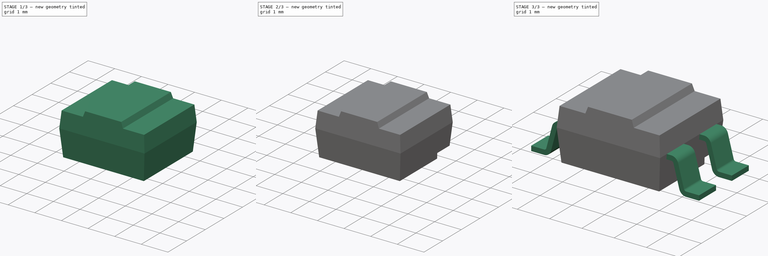
[diagram: build sequence overview — one tinted view per stage of 3, left to right]
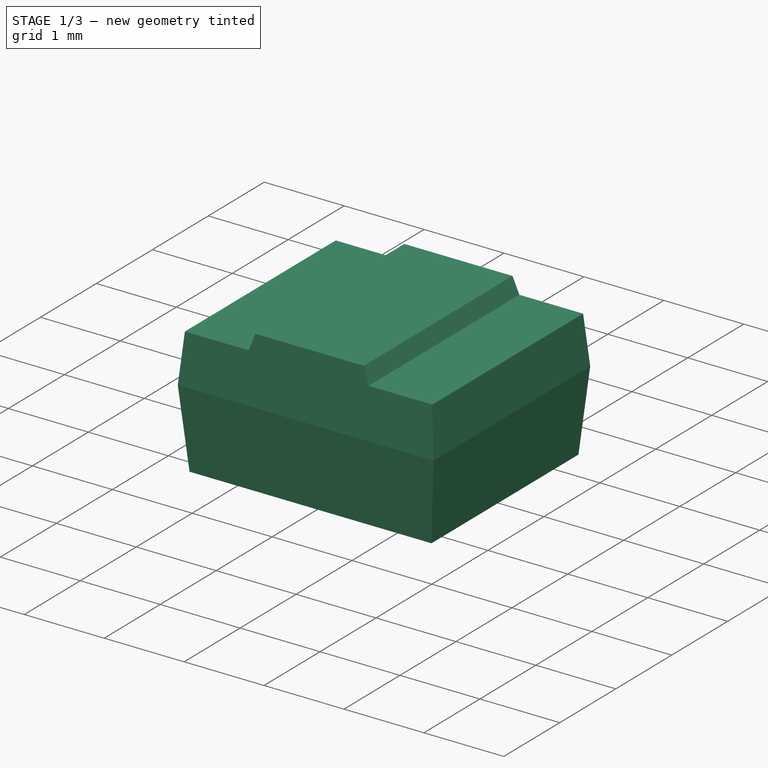
[diagram: stage 1 of 3 — iso view after this stage's code; geometry added in this stage tinted green]
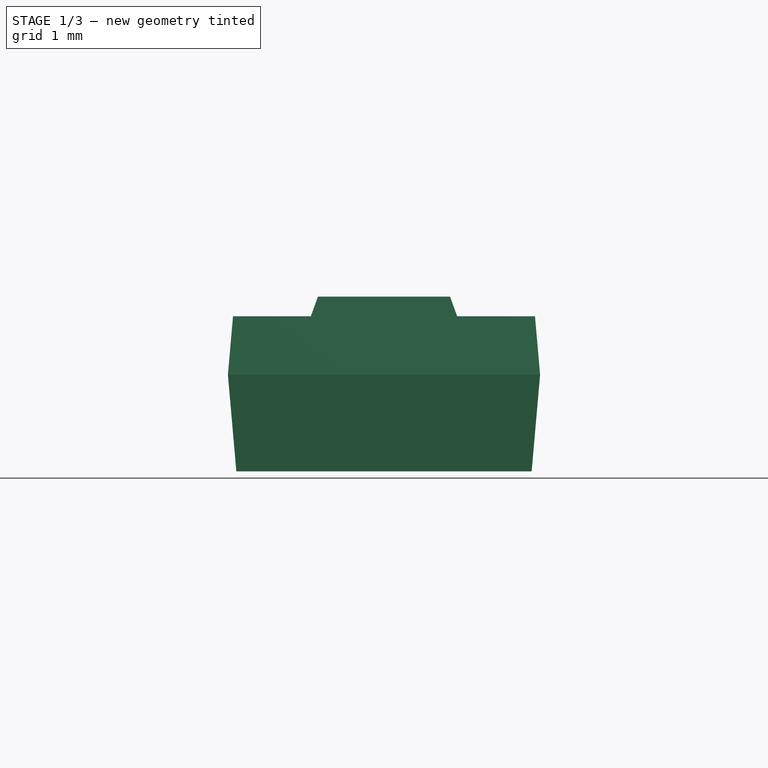
[diagram: stage 1 of 3 — front view after this stage's code; geometry added in this stage tinted green]
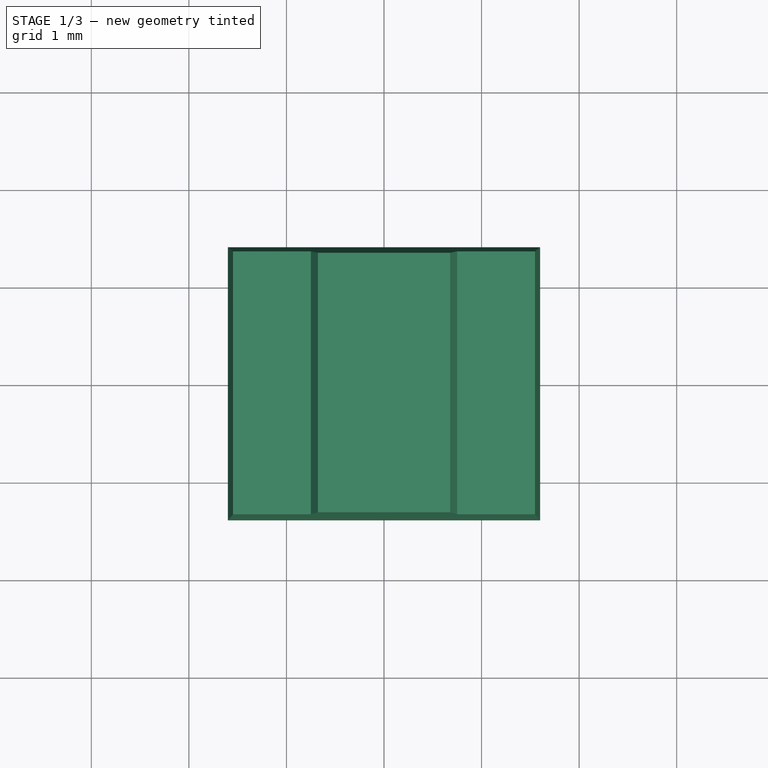
[diagram: stage 1 of 3 — top view after this stage's code; geometry added in this stage tinted green]
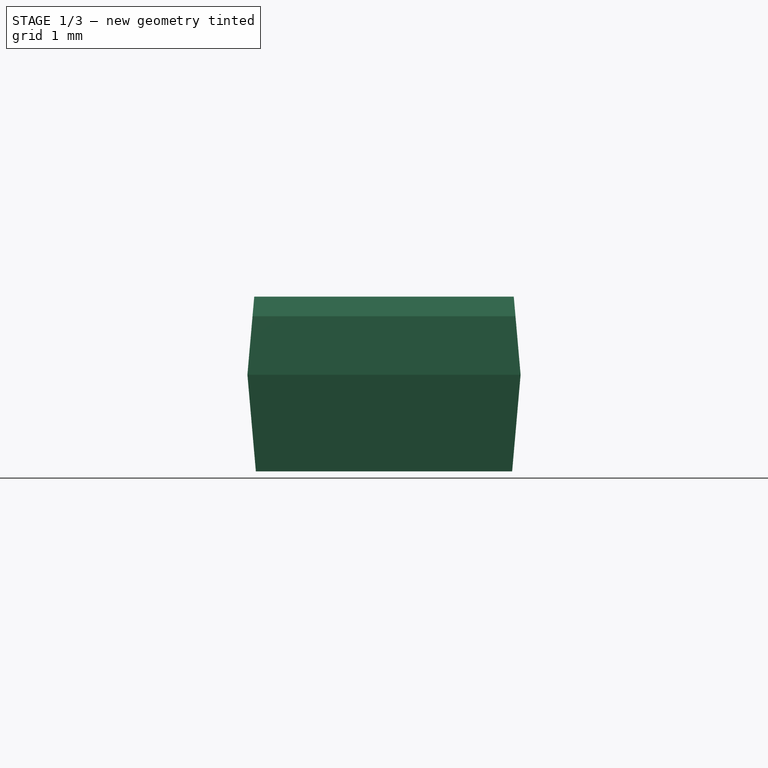
[diagram: stage 1 of 3 — right view after this stage's code; geometry added in this stage tinted green]
FCSTD DOCUMENT  (FreeCAD 2024.1006R14555 (Git shallow))
Label: LED_RGB-PLCC4_3.2x2.8mm_reverse_mount
License: All rights reserved
LicenseURL: https://en.wikipedia.org/wiki/All_rights_reserved
objects: Sketcher::SketchObject×5, PartDesign::Mirrored×3, PartDesign::Pad×2, PartDesign::Pocket×2, PartDesign::Groove×1, PartDesign::Plane×1, PartDesign::Body×1
note: 36 computed .brp shape members not serialized (recipe doc carries the construction recipe); baked Part::Feature solids carry a one-line shape summary decoded from their .brp

FEATURE [Sketcher::SketchObject] Sketch
  ArcFitTolerance = 1e-06
  AttachmentSupport = -> [XZ_Plane]
  ExternalBSplineMaxDegree = 5
  ExternalBSplineTolerance = 0.0001
  FullyConstrained = true
  InternalTolerance = 1e-06
  InvalidShape = false
  MakeInternals = false
  MapMode = 5
  Placement = pos=(0,0,0) rot=(1,0,0;1.5708rad)
  Support = -> [XZ_Plane]
  TreeRank = 11
  ValidateShape = false
  sketch-geometry (12):
    g0: LineSegment StartX=0 StartY=0.05 StartZ=0 EndX=-1.51339 EndY=0.05 EndZ=0
    g1: LineSegment StartX=-1.51339 StartY=0.05 StartZ=0 EndX=-1.6 EndY=1.04 EndZ=0
    g2: LineSegment StartX=-1.6 StartY=1.04 StartZ=0 EndX=-1.54751 EndY=1.64 EndZ=0
    g3: LineSegment StartX=-1.54751 StartY=1.64 StartZ=0 EndX=-0.75 EndY=1.64 EndZ=0
    g4: LineSegment StartX=-0.75 StartY=1.64 StartZ=0 EndX=-0.677206 EndY=1.84 EndZ=0
    g5: LineSegment StartX=-0.677206 StartY=1.84 StartZ=0 EndX=0 EndY=1.84 EndZ=0
    g6: LineSegment StartX=0 StartY=1.84 StartZ=0 EndX=0.677206 EndY=1.84 EndZ=0
    g7: LineSegment StartX=0.677206 StartY=1.84 StartZ=0 EndX=0.75 EndY=1.64 EndZ=0
    g8: LineSegment StartX=0.75 StartY=1.64 StartZ=0 EndX=1.54751 EndY=1.64 EndZ=0
    g9: LineSegment StartX=1.54751 StartY=1.64 StartZ=0 EndX=1.6 EndY=1.04 EndZ=0
    g10: LineSegment StartX=1.6 StartY=1.04 StartZ=0 EndX=1.51339 EndY=0.05 EndZ=0
    g11: LineSegment StartX=1.51339 StartY=0.05 StartZ=0 EndX=0 EndY=0.05 EndZ=0
  constraints (31):
    c: PointOnObject(g0,g-2)
    c: Horizontal(g0)
    c: Coincident(g0,g1)
    c: Coincident(g1,g2)
    c: Coincident(g2,g3)
    c: Horizontal(g3)
    c: Coincident(g3,g4)
    c: Coincident(g4,g5)
    c: Horizontal(g5)
    c: Coincident(g5,g6)
    c: Coincident(g6,g7)
    c: Coincident(g7,g8)
    c: Coincident(g8,g9)
    c: Coincident(g9,g10)
    c: Coincident(g10,g11)
    c: Coincident(g11,g0)
    c: Symmetric(g1,g9,g-2)
    c: Symmetric(g0,g10,g-2)
    c: DistanceX(g1,g9) = 3.2
    c: Symmetric(g8,g2,g-2)
    c: PointOnObject(g5,g-2)
    c: DistanceY(g-1,g0) = 0.05
    c: DistanceY(g-1,g5) = 1.84
    c: Symmetric(g4,g6,g5)
    c: DistanceY(g1,g4) = 0.8
    c: Angle(g2,g-2) = 0.0872665
    c: Angle(g-2,g1) = 0.0872665
    c: DistanceY(g3,g4) = 0.2
    c: Symmetric(g7,g3,g-2)
    c: Angle(g4,g-2) = 0.349066
    c: DistanceX(g3,g7) = 1.5
FEATURE [PartDesign::Pad] Pad
  AddSubType = 0
  AlongSketchNormal = false
  AutoTaperInnerAngle = true
  CheckUpToFaceLimits = true
  ClaimChildren = false
  Direction = (0,-1,2e-16)
  Fit = 0
  FitJoin = 0
  InnerFit = 0
  InnerFitJoin = 0
  InvalidShape = false
  Length = 2.8
  Length2 = 10
  Linearize = true
  Midplane = true
  NewSolid = false
  Profile = -> Sketch
  ReferenceAxis = -> Sketch [N_Axis]
  Suppress = false
  TaperInnerAngle = 0
  TaperInnerAngleRev = 0
  TreeRank = 12
  Type = 0
  ValidateShape = true
  _ProfileBasedVersion = 1
FEATURE [Sketcher::SketchObject] Sketch001
  ArcFitTolerance = 1e-06
  AttachmentSupport = -> [YZ_Plane]
  ExternalBSplineMaxDegree = 5
  ExternalBSplineTolerance = 0.0001
  ExternalGeometry = -> [Pad]
  FullyConstrained = true
  InternalTolerance = 1e-06
  InvalidShape = false
  MakeInternals = false
  MapMode = 5
  Placement = pos=(0,0,0) rot=(0.57735,0.57735,0.57735;2.0944rad)
  Support = -> [YZ_Plane]
  TreeRank = 13
  ValidateShape = false
  sketch-geometry (6):
    g0: LineSegment StartX=-1.4 StartY=1.04 StartZ=0 EndX=-1.33001 EndY=1.84 EndZ=0
    g1: LineSegment StartX=-1.4 StartY=1.84 StartZ=0 EndX=-1.4 EndY=1.04 EndZ=0
    g2: LineSegment StartX=-1.33001 StartY=1.84 StartZ=0 EndX=-1.4 EndY=1.84 EndZ=0
    g3: LineSegment StartX=-1.4 StartY=1.04 StartZ=0 EndX=-1.31339 EndY=0.05 EndZ=0
    g4: LineSegment StartX=-1.4 StartY=0.05 StartZ=0 EndX=-1.4 EndY=1.04 EndZ=0
    g5: LineSegment StartX=-1.31339 StartY=0.05 StartZ=0 EndX=-1.4 EndY=0.05 EndZ=0
  constraints (14):
    c: Coincident(g0,g-4)
    c: Coincident(g1,g-5)
    c: Coincident(g1,g0)
    c: Coincident(g2,g0)
    c: Coincident(g2,g1)
    c: Horizontal(g2)
    c: Coincident(g3,g0)
    c: Coincident(g4,g-3)
    c: Coincident(g4,g0)
    c: Coincident(g5,g3)
    c: Coincident(g5,g4)
    c: Horizontal(g5)
    c: Angle(g4,g3) = 0.0872665
    c: Angle(g0,g1) = 0.0872665
FEATURE [PartDesign::Pocket] Pocket
  AddSubType = 1
  AlongSketchNormal = false
  AutoTaperInnerAngle = true
  BaseFeature = -> Pad
  CheckUpToFaceLimits = true
  ClaimChildren = false
  Direction = (-1,2e-16,-3e-16)
  Fit = 0
  FitJoin = 0
  InnerFit = 0
  InnerFitJoin = 0
  InvalidShape = false
  Length = 5
  Length2 = 10
  Linearize = true
  Midplane = true
  NewSolid = false
  Profile = -> Sketch001
  ReferenceAxis = -> Sketch001 [N_Axis]
  Suppress = false
  TaperInnerAngle = 0
  TaperInnerAngleRev = 0
  TreeRank = 14
  Type = 1
  ValidateShape = true
  _ProfileBasedVersion = 1
  _Version = 1
FEATURE [PartDesign::Mirrored] Mirrored
  AddSubType = 0
  BaseFeature = -> Pocket
  CopyShape = false
  HideBaseFeature = false
  InvalidShape = false
  MirrorPlane = -> Sketch001 [V_Axis]
  NewSolid = false
  OffsetBaseFeature = true
  OriginalSubs = -> [Pocket]
  Originals = -> [Pocket]
  ParallelTransform = true
  SubTransform = true
  Suppress = false
  TreeRank = 15
  ValidateShape = true
  _Version = 4
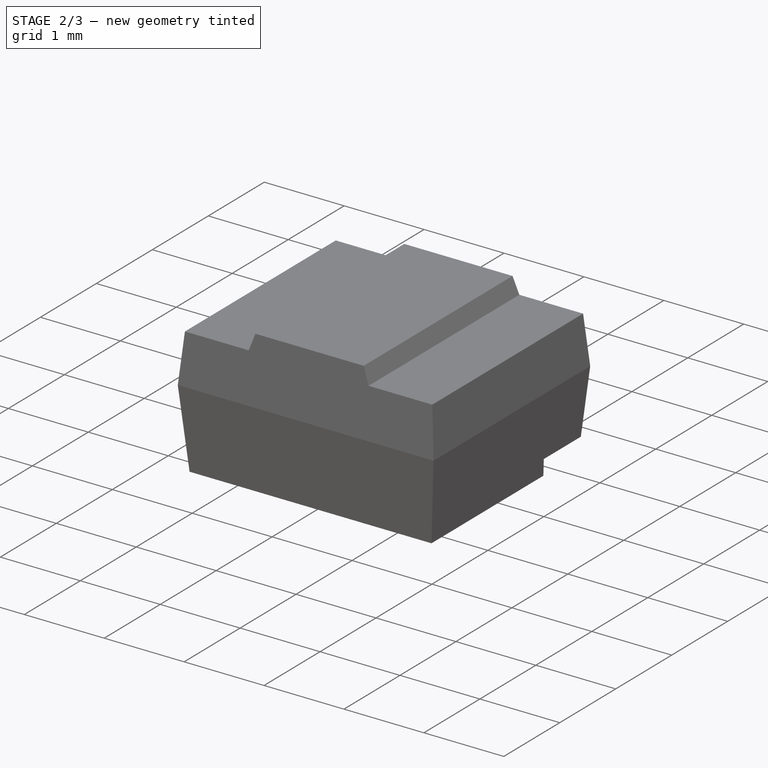
[diagram: stage 2 of 3 — iso view after this stage's code; geometry added in this stage tinted green]
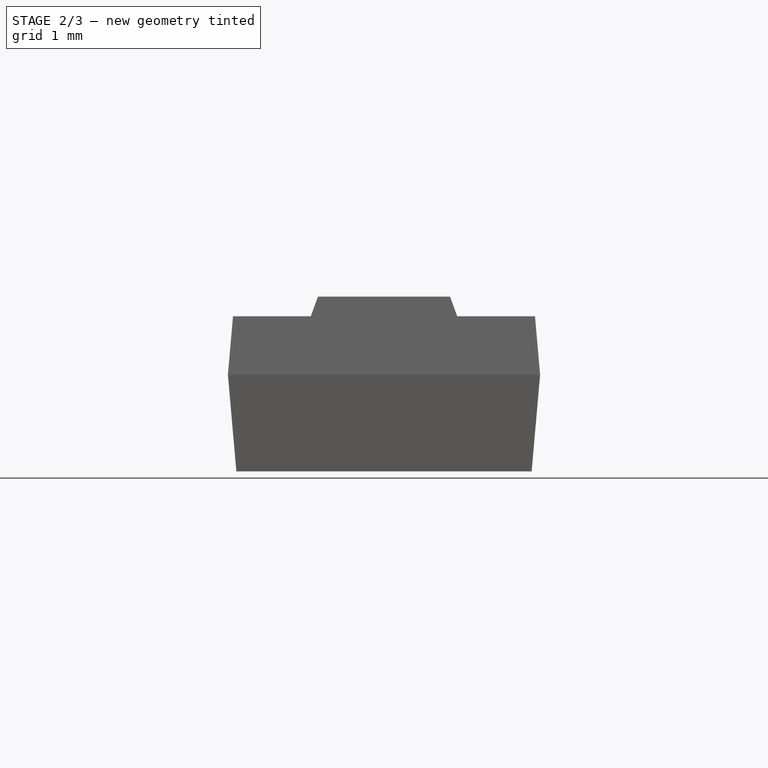
[diagram: stage 2 of 3 — front view after this stage's code; geometry added in this stage tinted green]
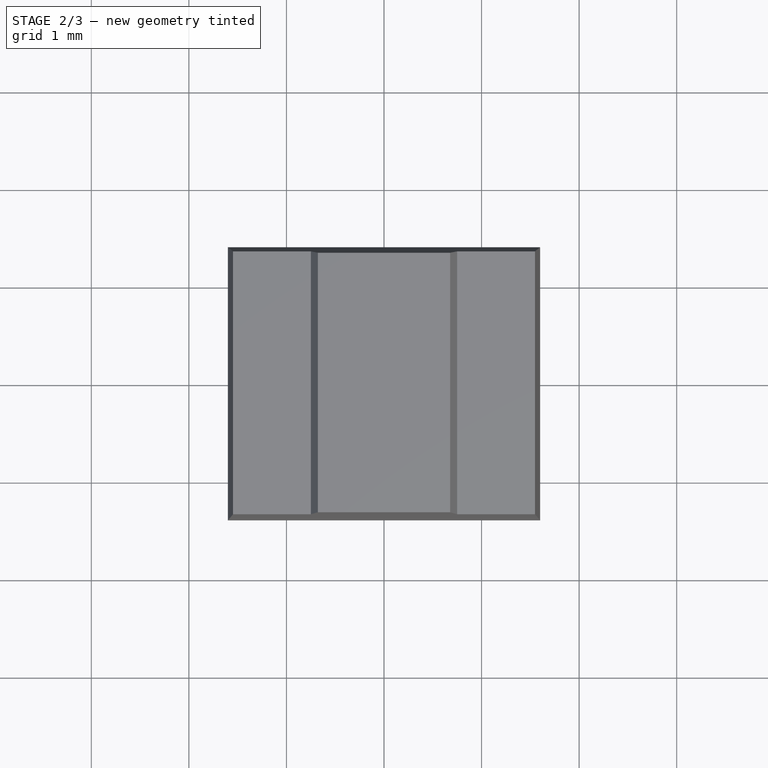
[diagram: stage 2 of 3 — top view after this stage's code; geometry added in this stage tinted green]
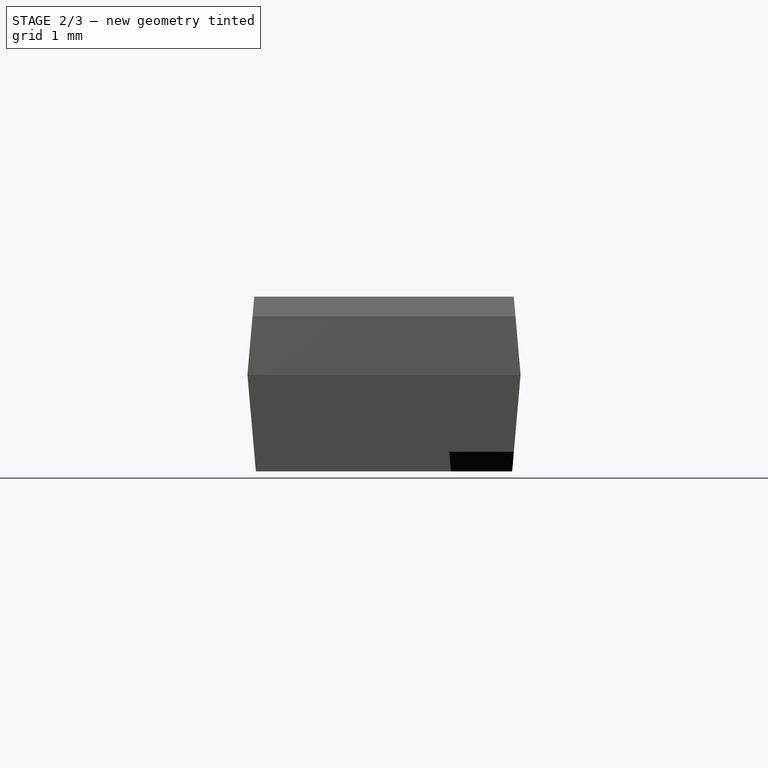
[diagram: stage 2 of 3 — right view after this stage's code; geometry added in this stage tinted green]
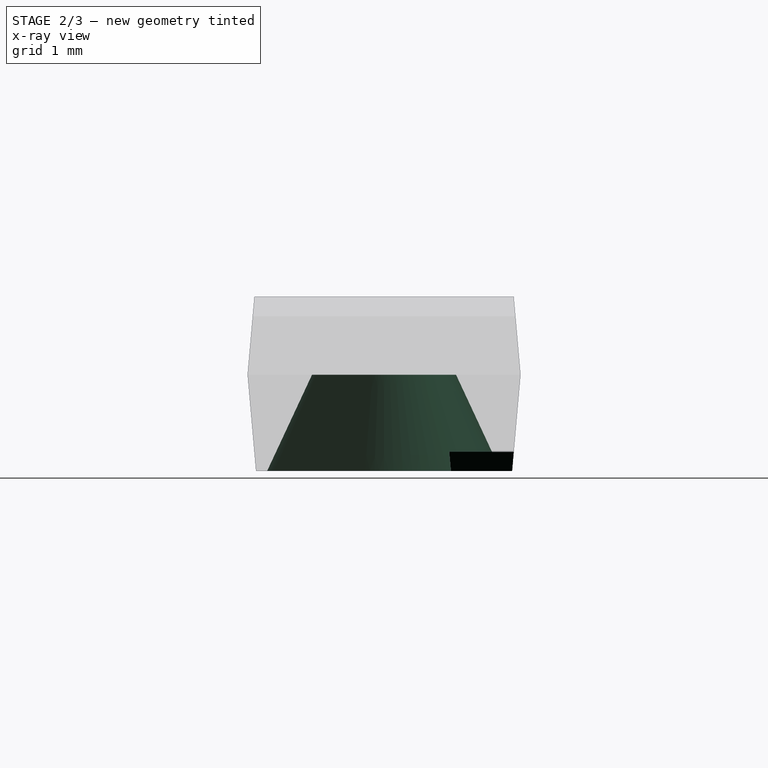
[diagram: stage 2 of 3 — x-ray composite at the right view; earlier geometry ghosted, this stage's added geometry solid]
FEATURE [Sketcher::SketchObject] Sketch002
  ArcFitTolerance = 1e-06
  AttachmentSupport = -> [XZ_Plane]
  ExternalBSplineMaxDegree = 5
  ExternalBSplineTolerance = 0.0001
  ExternalGeometry = -> [Mirrored]
  FullyConstrained = true
  InternalTolerance = 1e-06
  InvalidShape = false
  MakeInternals = false
  MapMode = 5
  Placement = pos=(0,0,0) rot=(1,0,0;1.5708rad)
  Support = -> [XZ_Plane]
  TreeRank = 16
  ValidateShape = false
  expr: Constraints[10] = 2.4 / 2
  sketch-geometry (4):
    g0: LineSegment StartX=-1.2 StartY=0.05 StartZ=0 EndX=-0.738355 EndY=1.04 EndZ=0
    g1: LineSegment StartX=-0.738355 StartY=1.04 StartZ=0 EndX=0 EndY=1.04 EndZ=0
    g2: LineSegment StartX=-1.2 StartY=0.05 StartZ=0 EndX=0 EndY=0.05 EndZ=0
    g3: LineSegment StartX=0 StartY=0.05 StartZ=0 EndX=0 EndY=1.04 EndZ=0
  constraints (11):
    c: PointOnObject(g0,g-3)
    c: PointOnObject(g0,g-5)
    c: Coincident(g0,g1)
    c: Angle(g0,g-2) = 0.436332
    c: Coincident(g0,g2)
    c: Coincident(g3,g-4)
    c: Vertical(g3)
    c: Coincident(g1,g3)
    c: Horizontal(g1)
    c: Coincident(g-4,g2)
    c: Distance(g2) = 1.2
FEATURE [PartDesign::Groove] Groove
  AddSubType = 1
  Angle = 360
  Axis = (0,2e-16,1)
  Base = (0,0,0)
  BaseFeature = -> Mirrored
  ClaimChildren = false
  Fit = 0
  FitJoin = 0
  InnerFit = 0
  InnerFitJoin = 0
  InvalidShape = false
  Linearize = true
  NewSolid = false
  Profile = -> Sketch002
  ReferenceAxis = -> Sketch002 [V_Axis]
  Reversed = true
  Suppress = false
  TreeRank = 17
  ValidateShape = true
  _ProfileBasedVersion = 1
FEATURE [Sketcher::SketchObject] Sketch003
  ArcFitTolerance = 1e-06
  AttachmentSupport = -> [Groove]
  ExternalBSplineMaxDegree = 5
  ExternalBSplineTolerance = 0.0001
  ExternalGeometry = -> [Groove]
  FullyConstrained = true
  InternalTolerance = 1e-06
  InvalidShape = false
  MakeInternals = false
  MapMode = 5
  Placement = pos=(0,0,0.05) rot=(1,0,0;3.14159rad)
  Support = -> [Groove]
  TreeRank = 18
  ValidateShape = false
  sketch-geometry (3):
    g0: LineSegment StartX=1.7 StartY=-0.5 StartZ=0 EndX=0.7 EndY=-1.5 EndZ=0
    g1: LineSegment StartX=0.7 StartY=-1.5 StartZ=0 EndX=1.7 EndY=-1.5 EndZ=0
    g2: LineSegment StartX=1.7 StartY=-1.5 StartZ=0 EndX=1.7 EndY=-0.5 EndZ=0
  constraints (9):
    c: Coincident(g0,g1)
    c: Horizontal(g1)
    c: Coincident(g1,g2)
    c: Coincident(g2,g0)
    c: Vertical(g2)
    c: Angle(g1,g0) = 0.785398
    c: DistanceX(g-4,g1) = 1.7
    c: DistanceY(g1,g-1) = 1.5
    c: Distance(g2) = 1
FEATURE [PartDesign::Pocket] Pocket001
  AddSubType = 1
  AlongSketchNormal = false
  AutoTaperInnerAngle = true
  BaseFeature = -> Groove
  CheckUpToFaceLimits = true
  ClaimChildren = false
  Direction = (0,2e-16,1)
  Fit = 0
  FitJoin = 0
  InnerFit = 0
  InnerFitJoin = 0
  InvalidShape = false
  Length = 0.2
  Length2 = 10
  Linearize = true
  NewSolid = false
  Profile = -> Sketch003
  ReferenceAxis = -> Sketch003 [N_Axis]
  Suppress = false
  TaperInnerAngle = 0
  TaperInnerAngleRev = 0
  TreeRank = 19
  Type = 0
  ValidateShape = true
  _ProfileBasedVersion = 1
  _Version = 1
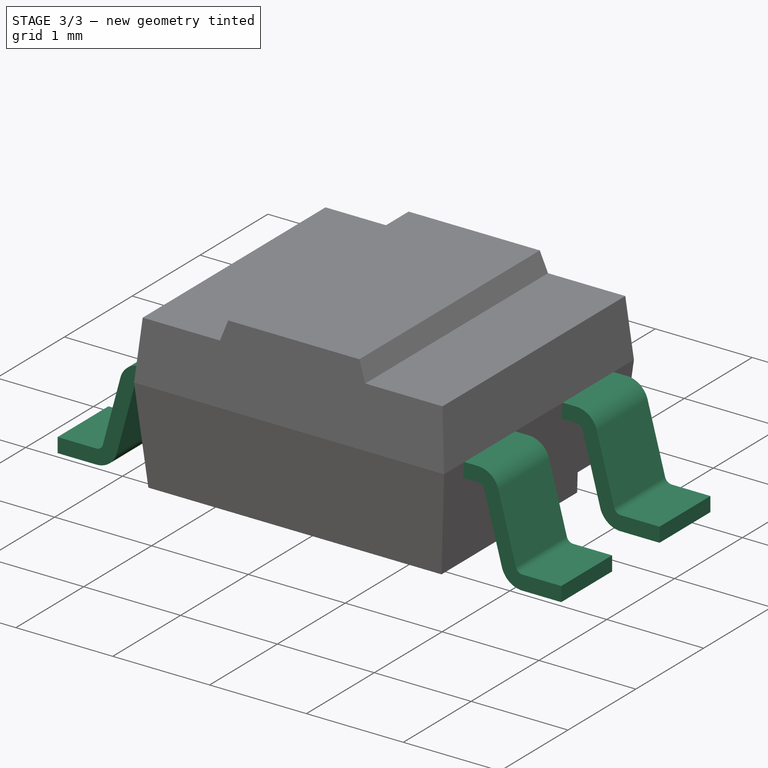
[diagram: stage 3 of 3 — iso view after this stage's code; geometry added in this stage tinted green]
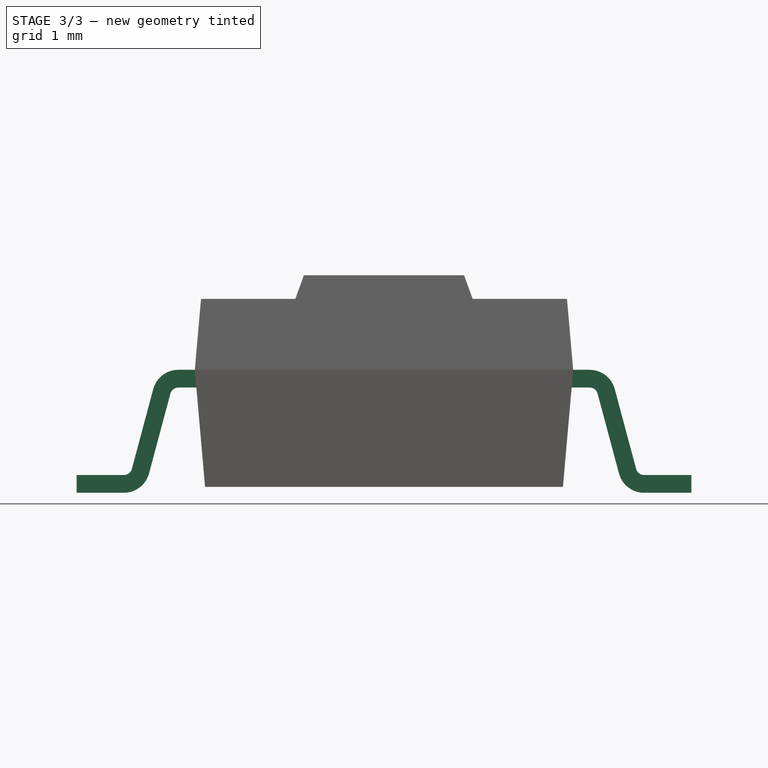
[diagram: stage 3 of 3 — front view after this stage's code; geometry added in this stage tinted green]
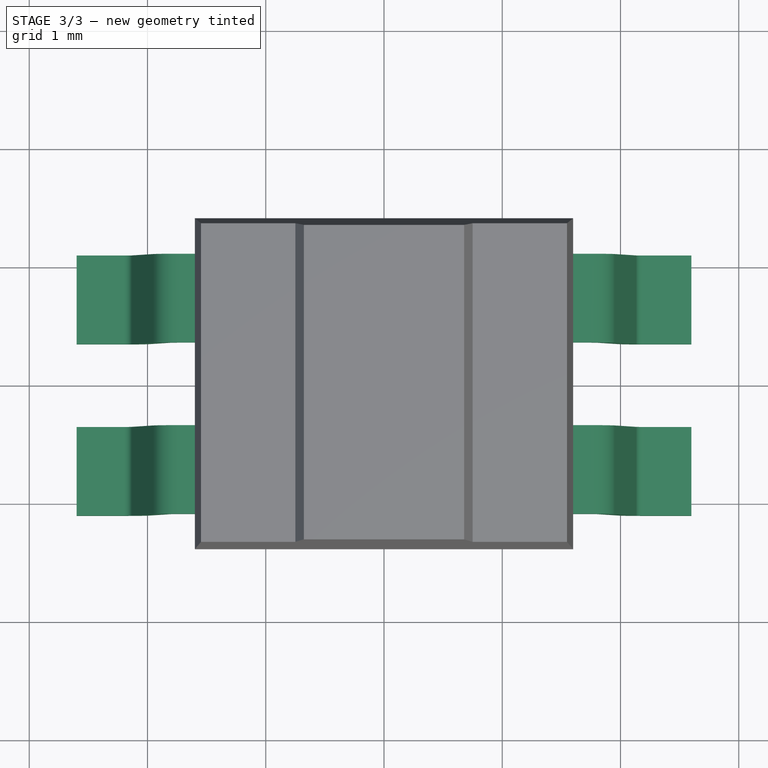
[diagram: stage 3 of 3 — top view after this stage's code; geometry added in this stage tinted green]
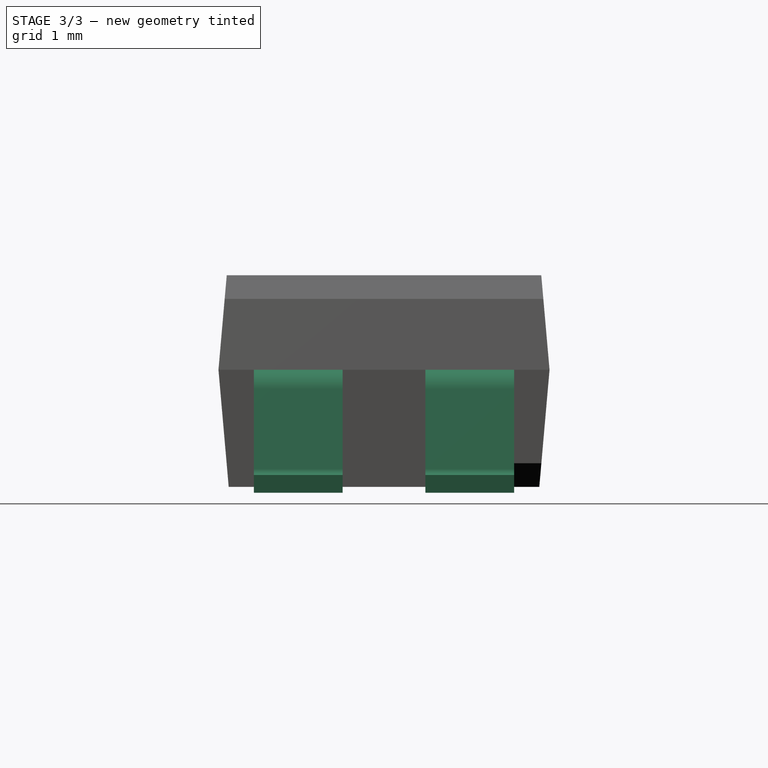
[diagram: stage 3 of 3 — right view after this stage's code; geometry added in this stage tinted green]
FEATURE [PartDesign::Plane] DatumPlane
  AttachmentOffset = pos=(0,0,0.35) rot=(0,0,1;0rad)
  AttachmentSupport = -> [XZ_Plane]
  InvalidShape = false
  Length = 10
  MapMode = 5
  MinimumLength = 10
  MinimumWidth = 10
  Placement = pos=(0,-0.35,1e-16) rot=(1,0,0;1.5708rad)
  ResizeMode = 0
  Support = -> [XZ_Plane]
  TreeRank = 20
  ValidateShape = false
  Width = 10
FEATURE [Sketcher::SketchObject] Sketch004
  ArcFitTolerance = 1e-06
  AttachmentSupport = -> [DatumPlane]
  ExternalBSplineMaxDegree = 5
  ExternalBSplineTolerance = 0.0001
  ExternalGeometry = -> [Pocket001]
  FullyConstrained = true
  InternalTolerance = 1e-06
  InvalidShape = false
  MakeInternals = false
  MapMode = 5
  Placement = pos=(0,-0.35,1e-16) rot=(1,0,0;1.5708rad)
  Support = -> [DatumPlane]
  TreeRank = 21
  ValidateShape = false
  sketch-geometry (12):
    g0: LineSegment StartX=-2.2 StartY=0.15 StartZ=0 EndX=-2.6 EndY=0.15 EndZ=0
    g1: LineSegment StartX=-2.6 StartY=0.15 StartZ=0 EndX=-2.6 EndY=0 EndZ=0
    g2: LineSegment StartX=-2.6 StartY=0 StartZ=0 EndX=-2.2 EndY=0 EndZ=0
    g3: ArcOfCircle CenterX=-2.2 CenterY=0.22 CenterZ=0 NormalX=0 NormalY=0 NormalZ=1 AngleXU=0 Radius=0.07 StartAngle=4.71239 EndAngle=6.02139
    g4: ArcOfCircle CenterX=-2.2 CenterY=0.22 CenterZ=0 NormalX=0 NormalY=0 NormalZ=1 AngleXU=0 Radius=0.22 StartAngle=4.71239 EndAngle=6.02139
    g5: LineSegment StartX=-2.13239 StartY=0.201883 StartZ=0 EndX=-1.9515 EndY=0.87694 EndZ=0
    g6: LineSegment StartX=-1.9875 StartY=0.16306 StartZ=0 EndX=-1.80662 EndY=0.838117 EndZ=0
    g7: ArcOfCircle CenterX=-1.739 CenterY=0.82 CenterZ=0 NormalX=0 NormalY=0 NormalZ=1 AngleXU=0 Radius=0.07 StartAngle=1.5708 EndAngle=2.87979
    g8: ArcOfCircle CenterX=-1.739 CenterY=0.82 CenterZ=0 NormalX=0 NormalY=0 NormalZ=1 AngleXU=0 Radius=0.22 StartAngle=1.5708 EndAngle=2.87979
    g9: LineSegment StartX=-1.739 StartY=1.04 StartZ=0 EndX=-1.4 EndY=1.04 EndZ=0
    g10: LineSegment StartX=-1.4 StartY=1.04 StartZ=0 EndX=-1.4 EndY=0.89 EndZ=0
    g11: LineSegment StartX=-1.4 StartY=0.89 StartZ=0 EndX=-1.739 EndY=0.89 EndZ=0
  constraints (30):
    c: Horizontal(g0)
    c: Coincident(g0,g1)
    c: Coincident(g1,g2)
    c: Horizontal(g2)
    c: PointOnObject(g2,g-1)
    c: Coincident(g4,g3)
    c: Tangent(g3,g0) = 1.5708
    c: Tangent(g4,g2) = -1.5708
    c: Vertical(g1)
    c: Tangent(g5,g3) = -1.5708
    c: Tangent(g6,g4) = -1.5708
    c: DistanceY(g1,g1) = 0.15
    c: Coincident(g8,g7)
    c: PointOnObject(g9,g-3)
    c: Horizontal(g9)
    c: Coincident(g9,g10)
    c: Vertical(g10)
    c: Coincident(g10,g11)
    c: Horizontal(g11)
    c: Equal(g10,g1)
    c: Angle(g5,g0) = 1.8326
    c: Distance(g9,g-3) = 0.2
    c: DistanceX(g0,g0) = 0.4
    c: Tangent(g9,g8) = 1.5708
    c: Radius(g3) = 0.07
    c: Tangent(g8,g5) = 1.5708
    c: Radius(g7) = 0.07
    c: Tangent(g11,g7) = -1.5708
    c: DistanceX(g-2,g1) = -2.6
    c: Tangent(g7,g6) = 1.5708
FEATURE [PartDesign::Pad] Pad001
  AddSubType = 0
  AlongSketchNormal = false
  AutoTaperInnerAngle = true
  BaseFeature = -> Pocket001
  CheckUpToFaceLimits = true
  ClaimChildren = false
  Direction = (0,-1,2e-16)
  Fit = 0
  FitJoin = 0
  InnerFit = 0
  InnerFitJoin = 0
  InvalidShape = false
  Length = 0.75
  Length2 = 10
  Linearize = true
  NewSolid = false
  Profile = -> Sketch004
  ReferenceAxis = -> Sketch004 [N_Axis]
  Suppress = false
  TaperInnerAngle = 0
  TaperInnerAngleRev = 0
  TreeRank = 22
  Type = 0
  ValidateShape = true
  _ProfileBasedVersion = 1
FEATURE [PartDesign::Mirrored] Mirrored001
  AddSubType = 0
  BaseFeature = -> Pad001
  CopyShape = false
  HideBaseFeature = false
  InvalidShape = false
  MirrorPlane = -> Sketch004 [V_Axis]
  NewSolid = false
  OffsetBaseFeature = true
  OriginalSubs = -> [Pad001]
  Originals = -> [Pad001]
  ParallelTransform = true
  SubTransform = true
  Suppress = false
  TreeRank = 23
  ValidateShape = true
  _Version = 4
FEATURE [PartDesign::Mirrored] Mirrored002
  AddSubType = 0
  BaseFeature = -> Mirrored001
  CopyShape = false
  HideBaseFeature = false
  InvalidShape = false
  MirrorPlane = -> XZ_Plane
  NewSolid = false
  OffsetBaseFeature = true
  OriginalSubs = -> [Mirrored001]
  Originals = -> [Mirrored001]
  ParallelTransform = true
  SubTransform = true
  Suppress = false
  TreeRank = 24
  ValidateShape = true
  _Version = 4
FEATURE [PartDesign::Body] Body
  AutoGroupSolids = false
  ClaimAllChildren = false
  ExportMode = 0
  Group = -> [Sketch,Pad,Sketch001,Pocket,Mirrored,Sketch002,Groove,Sketch003,Pocket001,DatumPlane,Sketch004,Pad001,Mirrored001,Mirrored002]
  InvalidShape = false
  Origin = -> Origin
  Tip = -> Mirrored002
  TreeRank = 10
  ValidateShape = false
  _ExportChildren = -> [Pad,Pocket,Mirrored,Groove,Pocket001,DatumPlane,Pad001,Mirrored001,Mirrored002]
  _GroupVersion = 1
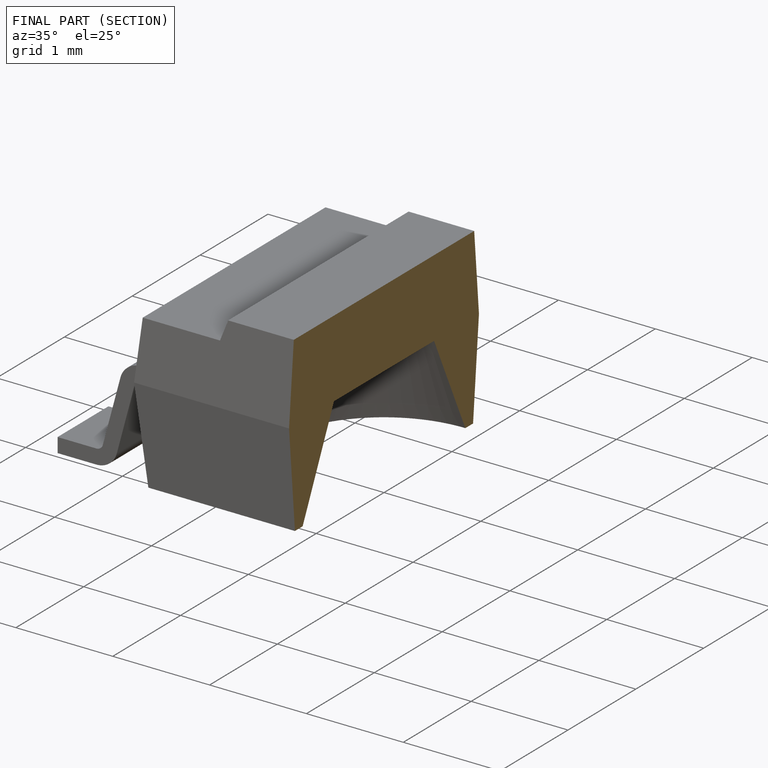
[diagram: finished part — half-section view (interior)]
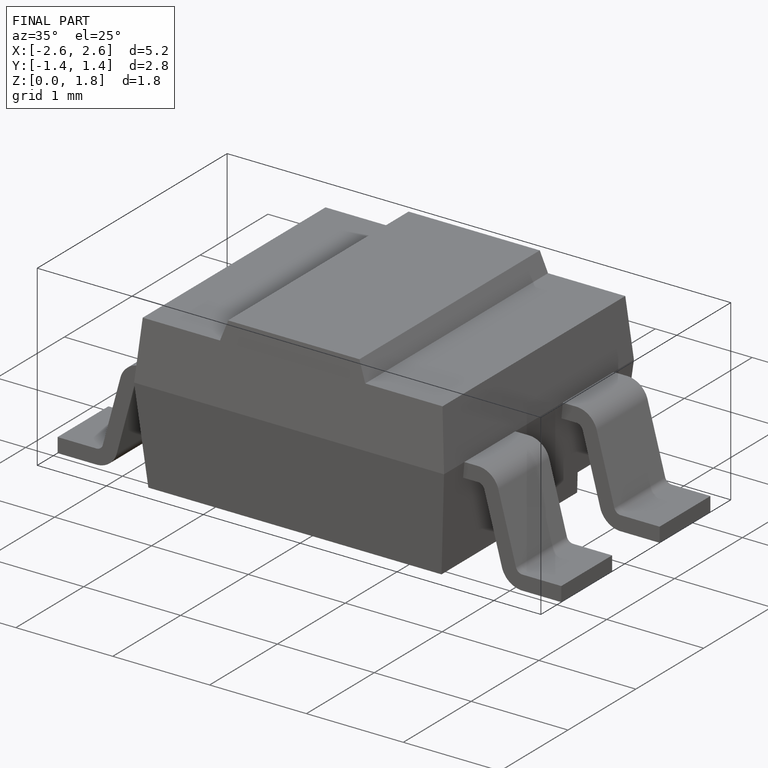
[diagram: finished part — iso view with bounding-box wireframe]
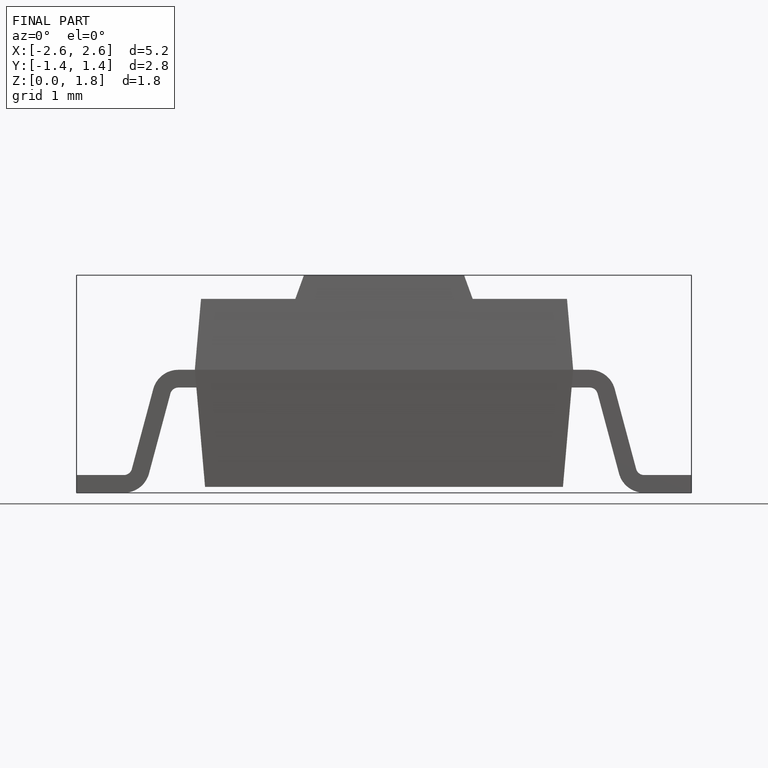
[diagram: finished part — front view with bounding-box wireframe]
